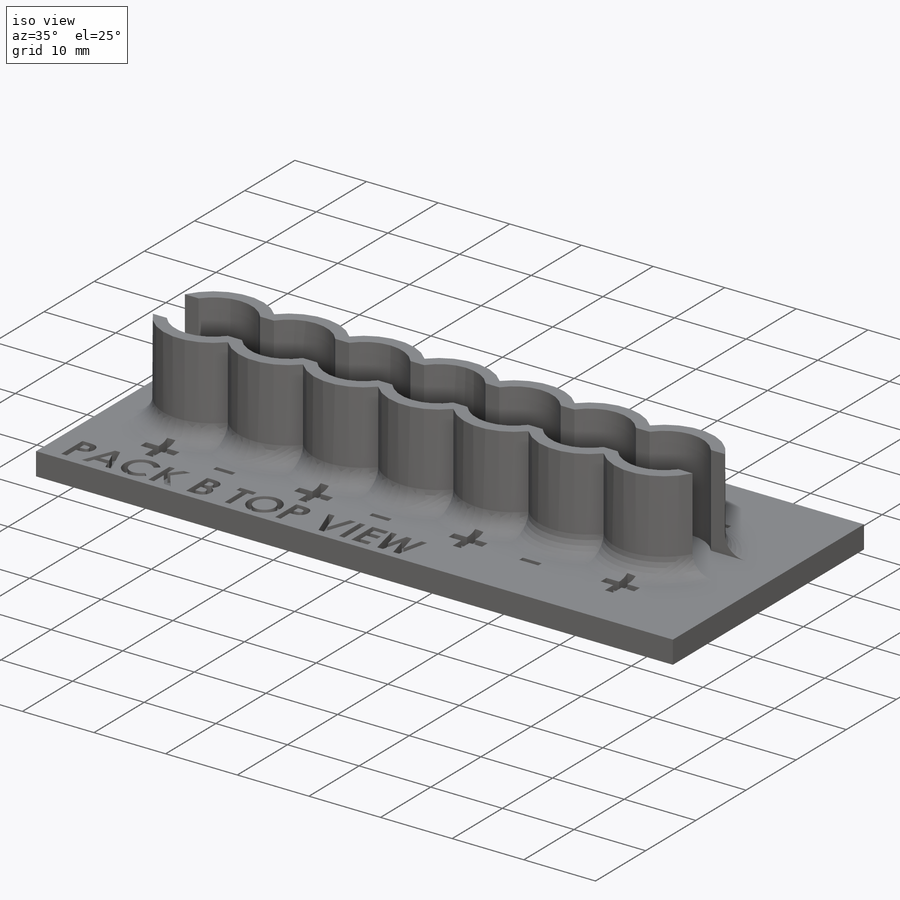
[diagram: iso view]
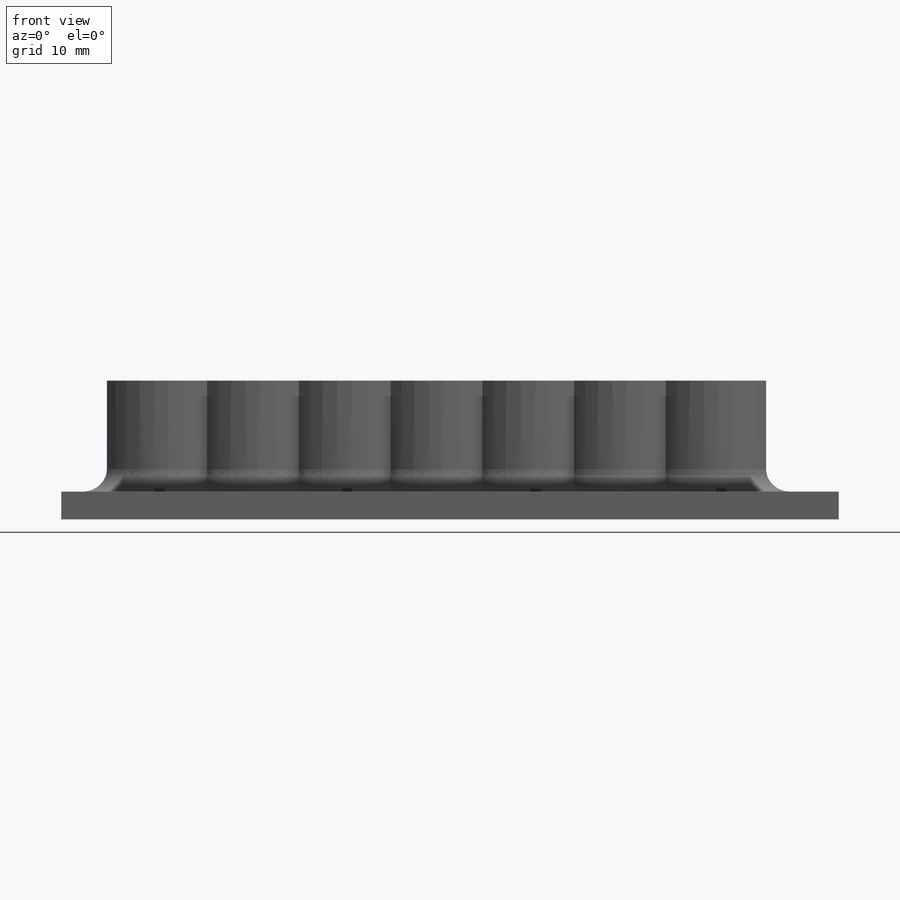
[diagram: front view]
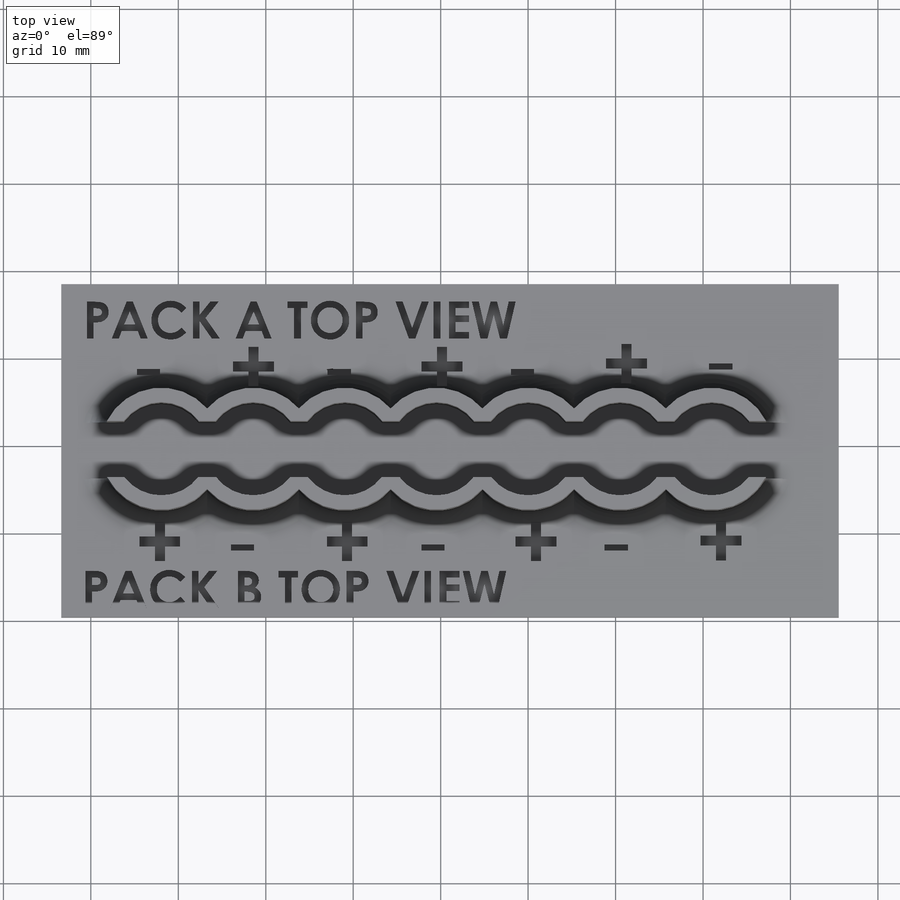
[diagram: top view]
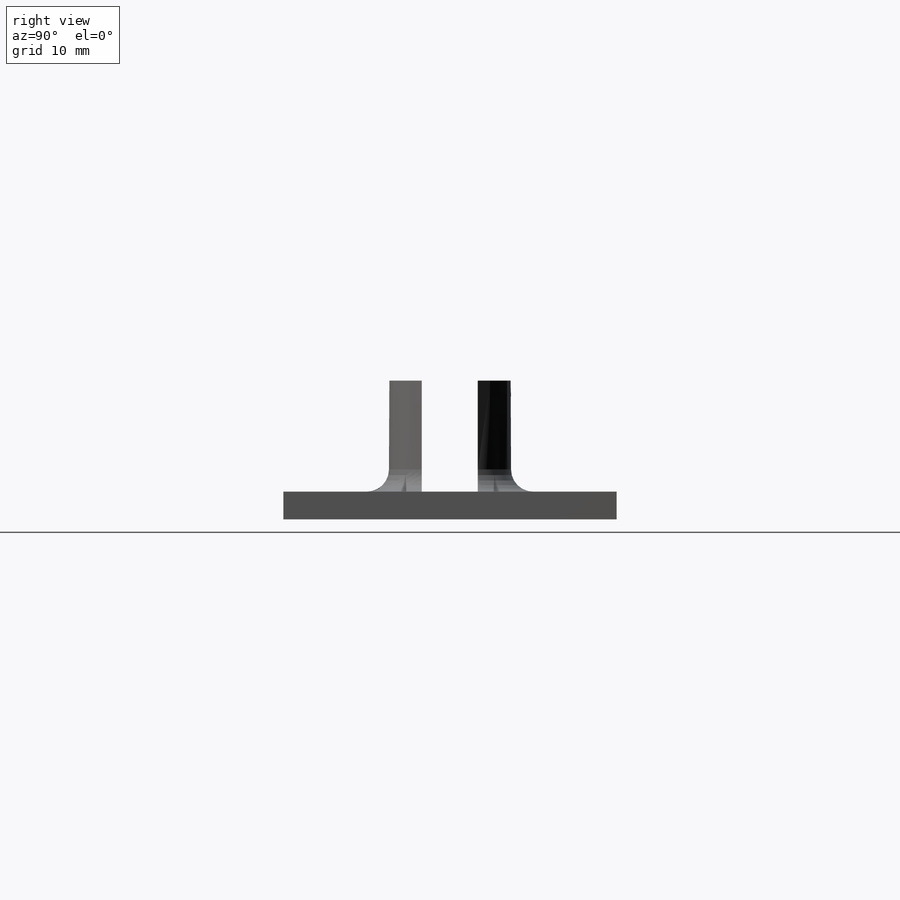
[diagram: right view]
SOLIDWORKS PART (.sldprt)
format: sldprt  version: not decoded by parser v0  size: 817,664 bytes
history: native  units: mm
features: sketch x3, extrude x2, material x1, plane x1, cut_extrude x1, fillet x1 (+13 scaffold rows collapsed)
feature tree (22):
  scaffold x13  (default folders/planes/origin — collapsed)
  material  "Material <not specified>"
  sketch  "Sketch1"  dims[D1=88.9mm D2=38.1mm]
  extrude  "Boss-Extrude1"  Depth=3.175mm
  plane  "Plane1"  Offset=0mm
  sketch  "Sketch2"  dims[c1.D1=10.668mm c1.D2=13.97mm c1.D7=5.461mm c1.D3=11.43mm c1.D4=6.35mm c1.D5=3.175mm c2.D4=~12.094315mm c3.D4=45.0deg c3.D6=11.43mm c3.D7=5.08mm c3.D8=3.175mm c3.D3=11.43mm c4.D6=~25.903019mm c4.D7=25.4mm c4.D3=11.43mm c5.D6=19.05mm c5.D7=10.4902mm c5.D4=7.0]
  extrude  "Boss-Extrude2"  Depth=12.7mm
  sketch  "Sketch3"
  cut_extrude  "Cut-Extrude1"  Depth=1.27mm
  fillet  "Fillet1"  Radius=2.54mm
decode coverage: 6 of 7 modeling features carry decoded parameters
note: ~ marks probable driven/reference dimensions
note: suppression state not decoded; provenance and decode notes live in map.json
